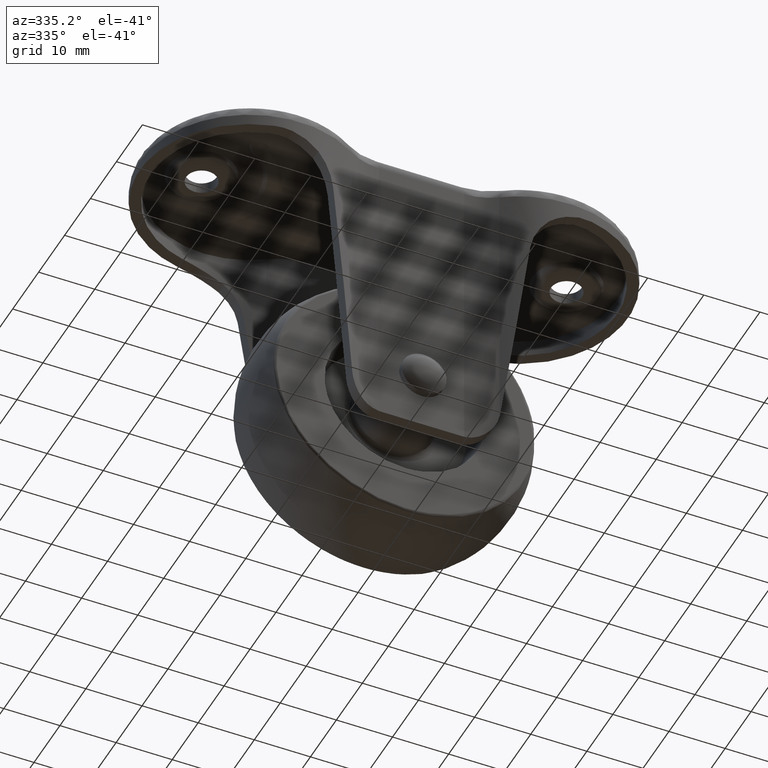
[diagram: clean part render]
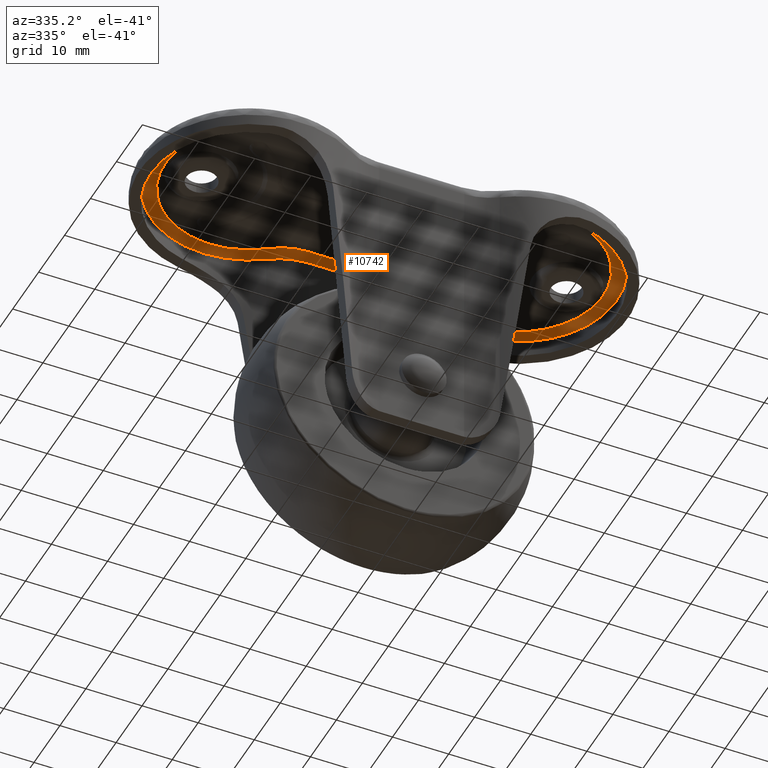
[diagram: same view with one face highlighted and labeled with its STEP entity id]
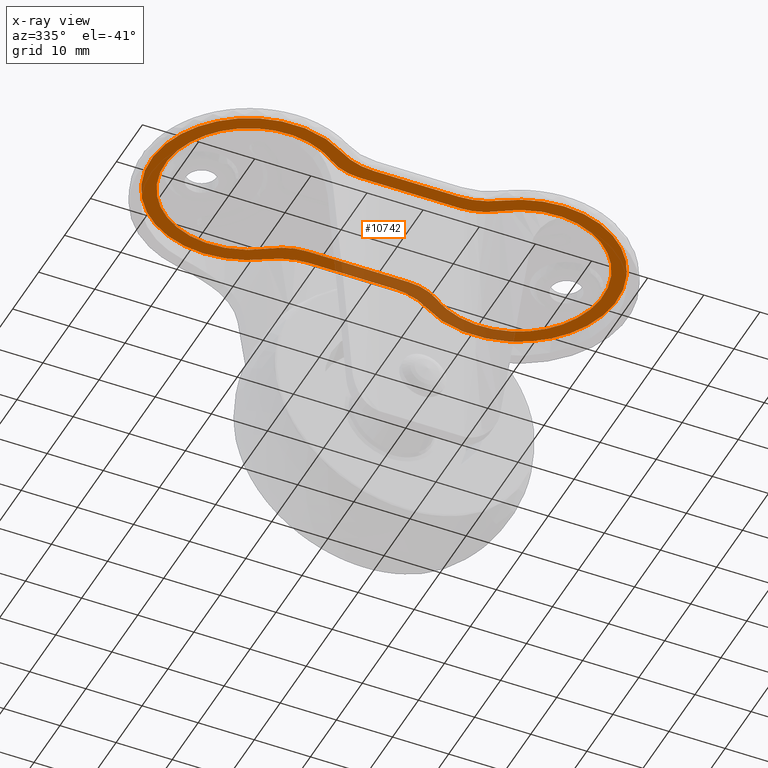
[diagram: x-ray of the same camera — body ghosted, the highlighted face saturated]
A machine part, auxiliary view. The second image highlights one B-rep face of the part: STEP entity #10742.
The next image is the same camera in x-ray: the body ghosted, the highlighted face saturated — about 17% of this face is hidden behind the body in this view.
In plain terms, the highlighted face is a freeform B-spline surface patch.
Its self-contained STEP definition (entity closure, byte-faithful):
#8194=CARTESIAN_POINT('',(-15.000000049449451,-12.000000037087080,-2.0));
#8195=VERTEX_POINT('',#8194);
#8209=CARTESIAN_POINT('',(-14.999999925825740,11.999999944369300,-2.0));
#8210=VERTEX_POINT('',#8209);
#8211=CARTESIAN_POINT('',(-14.999999925825740,11.999999944369300,-2.0));
#8212=CARTESIAN_POINT('',(-25.915318794008545,20.186489200927728,-2.0));
#8213=CARTESIAN_POINT('',(-35.096234153125742,10.093244652687551,-2.0));
#8214=CARTESIAN_POINT('',(-44.277149512242950,0.000000104447359,-2.0));
#8215=CARTESIAN_POINT('',(-35.096234257106119,-10.093244538374400,-2.0));
#8216=CARTESIAN_POINT('',(-25.915319001969291,-20.186489181196169,-2.0));
#8217=CARTESIAN_POINT('',(-15.000000049449451,-12.000000037087091,-2.0));
#8225=(BOUNDED_CURVE()B_SPLINE_CURVE(2,(#8211,#8212,#8213,#8214,#8215,#8216,#8217),.UNSPECIFIED.,.F.,.U.)B_SPLINE_CURVE_WITH_KNOTS((3,2,2,3),(0.0,0.333333333333333,0.666666666666667,1.0),.UNSPECIFIED.)CURVE()GEOMETRIC_REPRESENTATION_ITEM()RATIONAL_B_SPLINE_CURVE((1.0,0.739748947007729,1.0,0.739748947007729,1.0,0.739748947007729,1.0))REPRESENTATION_ITEM(''));
#8226=EDGE_CURVE('',#8210,#8195,#8225,.T.);
#8280=CARTESIAN_POINT('',(-9.0,-9.999999999999890,-2.0));
#8281=VERTEX_POINT('',#8280);
#8295=CARTESIAN_POINT('',(-9.0,-9.999999999999890,-2.0));
#8296=CARTESIAN_POINT('',(-12.333333367673234,-10.0,-2.000000000000000));
#8297=CARTESIAN_POINT('',(-15.000000049449440,-12.000000037087080,-2.0));
#8305=(BOUNDED_CURVE()B_SPLINE_CURVE(2,(#8295,#8296,#8297),.UNSPECIFIED.,.F.,.U.)CURVE()GEOMETRIC_REPRESENTATION_ITEM()QUASI_UNIFORM_CURVE()RATIONAL_B_SPLINE_CURVE((1.0,0.948683297073183,1.0))REPRESENTATION_ITEM(''));
#8306=EDGE_CURVE('',#8281,#8195,#8305,.T.);
#8342=CARTESIAN_POINT('',(-9.0,10.0,-2.0));
#8343=VERTEX_POINT('',#8342);
#8373=CARTESIAN_POINT('',(-14.999999925825740,11.999999944369311,-2.0));
#8374=CARTESIAN_POINT('',(-12.333333281823437,10.0,-2.000000000000000));
#8375=CARTESIAN_POINT('',(-9.0,10.0,-2.0));
#8383=(BOUNDED_CURVE()B_SPLINE_CURVE(2,(#8373,#8374,#8375),.UNSPECIFIED.,.F.,.U.)CURVE()GEOMETRIC_REPRESENTATION_ITEM()QUASI_UNIFORM_CURVE()RATIONAL_B_SPLINE_CURVE((1.0,0.948683299516511,1.0))REPRESENTATION_ITEM(''));
#8384=EDGE_CURVE('',#8210,#8343,#8383,.T.);
#8405=CARTESIAN_POINT('',(9.0,-10.0,-2.0));
#8406=VERTEX_POINT('',#8405);
#8420=CARTESIAN_POINT('',(9.0,-10.0,-2.0));
#8421=CARTESIAN_POINT('',(-9.0,-9.999999999999890,-2.0));
#8422=QUASI_UNIFORM_CURVE('',1,(#8420,#8421),.UNSPECIFIED.,.F.,.U.);
#8423=EDGE_CURVE('',#8406,#8281,#8422,.T.);
#8448=CARTESIAN_POINT('',(9.0,10.0,-2.0));
#8449=VERTEX_POINT('',#8448);
#8471=CARTESIAN_POINT('',(-9.0,10.0,-2.0));
#8472=CARTESIAN_POINT('',(9.0,10.0,-2.0));
#8473=QUASI_UNIFORM_CURVE('',1,(#8471,#8472),.UNSPECIFIED.,.F.,.U.);
#8474=EDGE_CURVE('',#8343,#8449,#8473,.T.);
#8498=CARTESIAN_POINT('',(14.999999925825801,-11.999999944369240,-2.0));
#8499=VERTEX_POINT('',#8498);
#8513=CARTESIAN_POINT('',(14.999999925825801,-11.999999944369240,-2.0));
#8514=CARTESIAN_POINT('',(12.333333281823437,-10.0,-2.000000000000000));
#8515=CARTESIAN_POINT('',(9.0,-10.0,-2.0));
#8523=(BOUNDED_CURVE()B_SPLINE_CURVE(2,(#8513,#8514,#8515),.UNSPECIFIED.,.F.,.U.)CURVE()GEOMETRIC_REPRESENTATION_ITEM()QUASI_UNIFORM_CURVE()RATIONAL_B_SPLINE_CURVE((1.0,0.948683299516511,1.0))REPRESENTATION_ITEM(''));
#8524=EDGE_CURVE('',#8499,#8406,#8523,.T.);
#8560=CARTESIAN_POINT('',(15.000000049449550,12.000000037087160,-2.0));
#8561=VERTEX_POINT('',#8560);
#8591=CARTESIAN_POINT('',(9.0,10.0,-2.0));
#8592=CARTESIAN_POINT('',(12.333333367673291,10.0,-2.000000000000000));
#8593=CARTESIAN_POINT('',(15.000000049449550,12.000000037087160,-2.0));
#8601=(BOUNDED_CURVE()B_SPLINE_CURVE(2,(#8591,#8592,#8593),.UNSPECIFIED.,.F.,.U.)CURVE()GEOMETRIC_REPRESENTATION_ITEM()QUASI_UNIFORM_CURVE()RATIONAL_B_SPLINE_CURVE((1.0,0.948683297073181,1.0))REPRESENTATION_ITEM(''));
#8602=EDGE_CURVE('',#8449,#8561,#8601,.T.);
#8653=CARTESIAN_POINT('',(14.999999925825801,-11.999999944369240,-2.0));
#8654=CARTESIAN_POINT('',(25.915318794008513,-20.186489200927706,-2.000000000000000));
#8655=CARTESIAN_POINT('',(35.096234153125721,-10.093244652687581,-2.0));
#8656=CARTESIAN_POINT('',(44.277149512242922,-0.000000104447440,-2.000000000000000));
#8657=CARTESIAN_POINT('',(35.096234257106182,10.093244538374339,-2.0));
#8658=CARTESIAN_POINT('',(25.915319001969429,20.186489181196119,-2.000000000000000));
#8659=CARTESIAN_POINT('',(15.000000049449559,12.000000037087171,-2.0));
#8667=(BOUNDED_CURVE()B_SPLINE_CURVE(2,(#8653,#8654,#8655,#8656,#8657,#8658,#8659),.UNSPECIFIED.,.F.,.U.)B_SPLINE_CURVE_WITH_KNOTS((3,2,2,3),(0.0,0.333333333333333,0.666666666666667,1.0),.UNSPECIFIED.)CURVE()GEOMETRIC_REPRESENTATION_ITEM()RATIONAL_B_SPLINE_CURVE((1.0,0.739748947007730,1.0,0.739748947007730,1.0,0.739748947007730,1.0))REPRESENTATION_ITEM(''));
#8668=EDGE_CURVE('',#8499,#8561,#8667,.T.);
#10137=CARTESIAN_POINT('',(-14.252394908147000,14.533898318463720,-2.0));
#10138=VERTEX_POINT('',#10137);
#10144=CARTESIAN_POINT('',(-14.252395133952280,-14.533898285573720,-2.0));
#10145=VERTEX_POINT('',#10144);
#10146=CARTESIAN_POINT('',(-14.252395133952280,-14.533898285573720,-2.0));
#10147=CARTESIAN_POINT('',(-27.013097374096603,-23.092254812238167,-2.000000000000000));
#10148=CARTESIAN_POINT('',(-37.150549160458681,-11.546127349824250,-2.0));
#10149=CARTESIAN_POINT('',(-47.288000946820759,0.000000112589668,-2.000000000000000));
#10150=CARTESIAN_POINT('',(-37.150549048815378,11.546127476981230,-2.0));
#10151=CARTESIAN_POINT('',(-27.013097150809998,23.092254841372796,-2.000000000000000));
#10152=CARTESIAN_POINT('',(-14.252394908147000,14.533898318463720,-2.0));
#10160=(BOUNDED_CURVE()B_SPLINE_CURVE(2,(#10146,#10147,#10148,#10149,#10150,#10151,#10152),.UNSPECIFIED.,.F.,.U.)B_SPLINE_CURVE_WITH_KNOTS((3,2,2,3),(0.0,0.333333333333333,0.666666666666667,1.0),.UNSPECIFIED.)CURVE()GEOMETRIC_REPRESENTATION_ITEM()RATIONAL_B_SPLINE_CURVE((1.0,0.751459948836402,1.0,0.751459948836402,1.0,0.751459948836402,1.0))REPRESENTATION_ITEM(''));
#10161=EDGE_CURVE('',#10145,#10138,#10160,.T.);
#10191=CARTESIAN_POINT('',(14.252395133952261,14.533898285573700,-2.0));
#10192=VERTEX_POINT('',#10191);
#10198=CARTESIAN_POINT('',(7.568322999999910,12.500000000000000,-2.0));
#10199=VERTEX_POINT('',#10198);
#10200=CARTESIAN_POINT('',(14.252395133952261,14.533898285573700,-2.0));
#10201=CARTESIAN_POINT('',(11.219806822263369,12.499999999999996,-2.000000000000000));
#10202=CARTESIAN_POINT('',(7.568322999999910,12.500000000000000,-2.0));
#10210=(BOUNDED_CURVE()B_SPLINE_CURVE(2,(#10200,#10201,#10202),.UNSPECIFIED.,.F.,.U.)CURVE()GEOMETRIC_REPRESENTATION_ITEM()QUASI_UNIFORM_CURVE()RATIONAL_B_SPLINE_CURVE((1.0,0.956689203871078,1.0))REPRESENTATION_ITEM(''));
#10211=EDGE_CURVE('',#10192,#10199,#10210,.T.);
#10252=CARTESIAN_POINT('',(14.252395133952280,-14.533898285573720,-2.0));
#10253=VERTEX_POINT('',#10252);
#10259=CARTESIAN_POINT('',(14.252395133952250,14.533898285573709,-2.0));
#10260=CARTESIAN_POINT('',(27.013097332618791,23.092254784419826,-2.000000000000000));
#10261=CARTESIAN_POINT('',(37.150549123244232,11.546127392209931,-2.0));
#10262=CARTESIAN_POINT('',(47.288000913869681,2.775558E-014,-2.000000000000000));
#10263=CARTESIAN_POINT('',(37.150549123244261,-11.546127392209900,-2.0));
#10264=CARTESIAN_POINT('',(27.013097332618841,-23.092254784419826,-2.000000000000000));
#10265=CARTESIAN_POINT('',(14.252395133952280,-14.533898285573731,-2.0));
#10273=(BOUNDED_CURVE()B_SPLINE_CURVE(2,(#10259,#10260,#10261,#10262,#10263,#10264,#10265),.UNSPECIFIED.,.F.,.U.)B_SPLINE_CURVE_WITH_KNOTS((3,2,2,3),(0.0,0.333333333333333,0.666666666666667,1.0),.UNSPECIFIED.)CURVE()GEOMETRIC_REPRESENTATION_ITEM()RATIONAL_B_SPLINE_CURVE((1.0,0.751459949899671,1.0,0.751459949899671,1.0,0.751459949899671,1.0))REPRESENTATION_ITEM(''));
#10274=EDGE_CURVE('',#10192,#10253,#10273,.T.);
#10295=CARTESIAN_POINT('',(7.568322999999910,-12.500000000000000,-2.0));
#10296=VERTEX_POINT('',#10295);
#10302=CARTESIAN_POINT('',(7.568322999999910,-12.500000000000000,-2.0));
#10303=CARTESIAN_POINT('',(11.219806822263372,-12.500000000000000,-2.000000000000000));
#10304=CARTESIAN_POINT('',(14.252395133952280,-14.533898285573720,-2.0));
#10312=(BOUNDED_CURVE()B_SPLINE_CURVE(2,(#10302,#10303,#10304),.UNSPECIFIED.,.F.,.U.)CURVE()GEOMETRIC_REPRESENTATION_ITEM()QUASI_UNIFORM_CURVE()RATIONAL_B_SPLINE_CURVE((1.0,0.956689203871078,1.0))REPRESENTATION_ITEM(''));
#10313=EDGE_CURVE('',#10296,#10253,#10312,.T.);
#10332=CARTESIAN_POINT('',(-7.568323000000000,-12.500000000000000,-2.0));
#10333=VERTEX_POINT('',#10332);
#10339=CARTESIAN_POINT('',(-7.568323000000000,-12.500000000000000,-2.0));
#10340=CARTESIAN_POINT('',(7.568322999999910,-12.500000000000000,-2.0));
#10341=QUASI_UNIFORM_CURVE('',1,(#10339,#10340),.UNSPECIFIED.,.F.,.U.);
#10342=EDGE_CURVE('',#10333,#10296,#10341,.T.);
#10371=CARTESIAN_POINT('',(-14.252395133952280,-14.533898285573720,-2.0));
#10372=CARTESIAN_POINT('',(-11.219806822263426,-12.500000000000002,-2.000000000000000));
#10373=CARTESIAN_POINT('',(-7.568323000000000,-12.500000000000000,-2.0));
#10381=(BOUNDED_CURVE()B_SPLINE_CURVE(2,(#10371,#10372,#10373),.UNSPECIFIED.,.F.,.U.)CURVE()GEOMETRIC_REPRESENTATION_ITEM()QUASI_UNIFORM_CURVE()RATIONAL_B_SPLINE_CURVE((1.0,0.956689203871078,1.0))REPRESENTATION_ITEM(''));
#10382=EDGE_CURVE('',#10145,#10333,#10381,.T.);
#10403=CARTESIAN_POINT('',(-7.568323000000000,12.500000000000000,-2.0));
#10404=VERTEX_POINT('',#10403);
#10410=CARTESIAN_POINT('',(-7.568323000000000,12.500000000000000,-2.0));
#10411=CARTESIAN_POINT('',(-11.219806729822839,12.499999999999998,-2.000000000000000));
#10412=CARTESIAN_POINT('',(-14.252394908146989,14.533898318463720,-2.0));
#10420=(BOUNDED_CURVE()B_SPLINE_CURVE(2,(#10410,#10411,#10412),.UNSPECIFIED.,.F.,.U.)CURVE()GEOMETRIC_REPRESENTATION_ITEM()QUASI_UNIFORM_CURVE()RATIONAL_B_SPLINE_CURVE((1.0,0.956689205923574,1.0))REPRESENTATION_ITEM(''));
#10421=EDGE_CURVE('',#10404,#10138,#10420,.T.);
#10439=CARTESIAN_POINT('',(7.568322999999910,12.500000000000000,-2.0));
#10440=CARTESIAN_POINT('',(-7.568323000000000,12.500000000000000,-2.0));
#10441=QUASI_UNIFORM_CURVE('',1,(#10439,#10440),.UNSPECIFIED.,.F.,.U.);
#10442=EDGE_CURVE('',#10199,#10404,#10441,.T.);
#10717=CARTESIAN_POINT('',(-45.645849839129660,-19.246265579947401,-2.0));
#10718=CARTESIAN_POINT('',(45.645852065363172,-19.246265579947401,-2.0));
#10719=CARTESIAN_POINT('',(-45.645849839129660,19.246266570081559,-2.0));
#10720=CARTESIAN_POINT('',(45.645852065363172,19.246266570081559,-2.0));
#10721=B_SPLINE_SURFACE_WITH_KNOTS('',1,1,((#10717,#10719),(#10718,#10720)),.UNSPECIFIED.,.F.,.F.,.U.,(2,2),(2,2),(0.0,91.291701904492840),(0.0,38.492532150028957),.UNSPECIFIED.);
#10722=ORIENTED_EDGE('',*,*,#10313,.F.);
#10723=ORIENTED_EDGE('',*,*,#10342,.F.);
#10724=ORIENTED_EDGE('',*,*,#10382,.F.);
#10725=ORIENTED_EDGE('',*,*,#10161,.T.);
#10726=ORIENTED_EDGE('',*,*,#10421,.F.);
#10727=ORIENTED_EDGE('',*,*,#10442,.F.);
#10728=ORIENTED_EDGE('',*,*,#10211,.F.);
#10729=ORIENTED_EDGE('',*,*,#10274,.T.);
#10730=EDGE_LOOP('',(#10722,#10723,#10724,#10725,#10726,#10727,#10728,#10729));
#10731=FACE_OUTER_BOUND('',#10730,.T.);
#10732=ORIENTED_EDGE('',*,*,#8474,.F.);
#10733=ORIENTED_EDGE('',*,*,#8384,.F.);
#10734=ORIENTED_EDGE('',*,*,#8226,.T.);
#10735=ORIENTED_EDGE('',*,*,#8306,.F.);
#10736=ORIENTED_EDGE('',*,*,#8423,.F.);
#10737=ORIENTED_EDGE('',*,*,#8524,.F.);
#10738=ORIENTED_EDGE('',*,*,#8668,.T.);
#10739=ORIENTED_EDGE('',*,*,#8602,.F.);
#10740=EDGE_LOOP('',(#10732,#10733,#10734,#10735,#10736,#10737,#10738,#10739));
#10741=FACE_BOUND('',#10740,.T.);
#10742=ADVANCED_FACE('',(#10731,#10741),#10721,.F.);